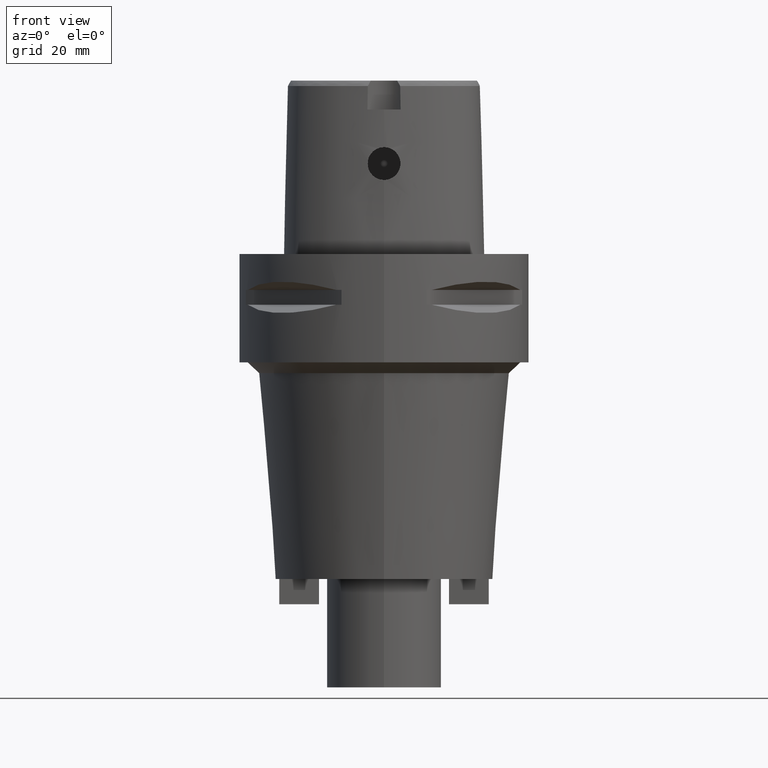
[diagram: clean part render]
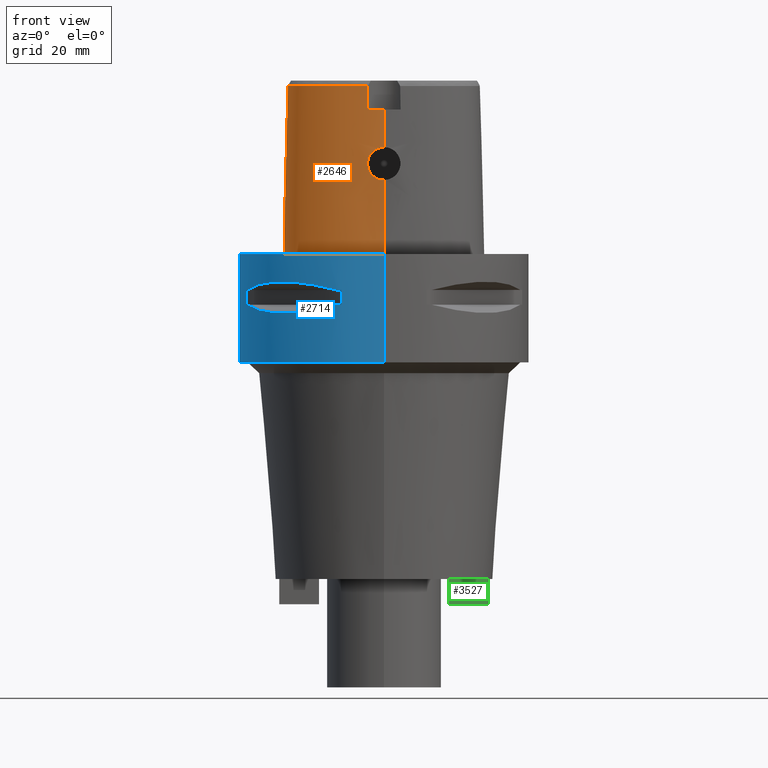
[diagram: same view with three faces highlighted in distinct colors, each labeled with its STEP entity id]
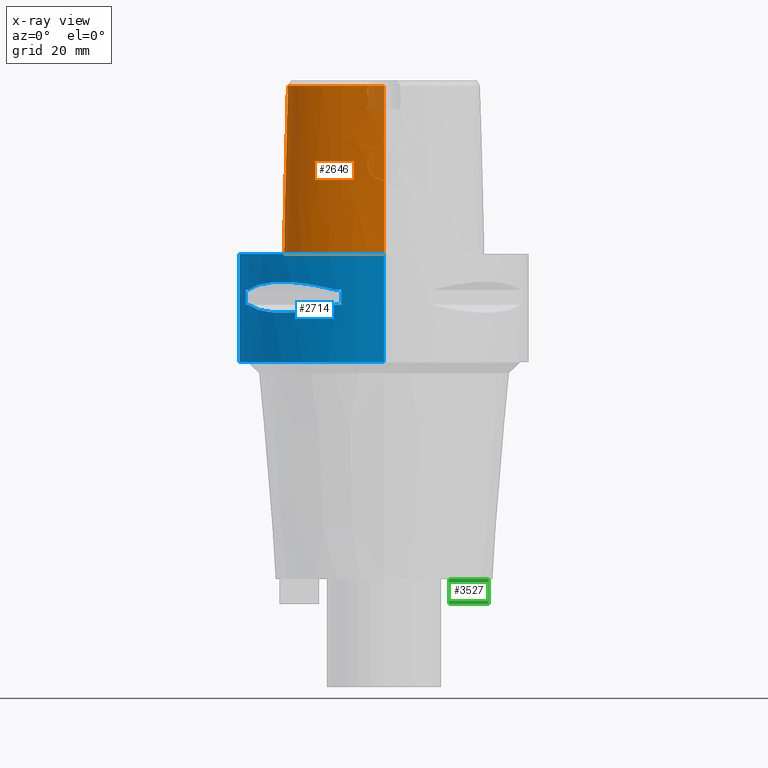
[diagram: x-ray of the same camera — body ghosted, the three highlighted faces saturated]
A machine part, front view with three faces highlighted in distinct colors.
The next image is the same camera in x-ray (body ghosted, the three faces saturated) — at least one of them is partly hidden behind the body in this view.
Their STEP definitions:

[orange] entity #2646 — the highlighted face is a freeform B-spline surface patch.
#194=CARTESIAN_POINT('',(-4.472216406693E0,-2.420008985674E1,4.652070903171E1));
#195=CARTESIAN_POINT('',(-5.566752972738E0,-2.409531443374E1,4.652067706231E1));
#196=CARTESIAN_POINT('',(-7.626572249183E0,-2.381749350375E1,4.652073690566E1));
#197=CARTESIAN_POINT('',(-1.025644246620E1,-2.327694465430E1,4.652070634773E1));
#198=CARTESIAN_POINT('',(-1.255553236811E1,-2.264619333084E1,4.652071981348E1));
#199=CARTESIAN_POINT('',(-1.462171284103E1,-2.193010112605E1,4.652071747614E1));
#200=CARTESIAN_POINT('',(-1.650534376786E1,-2.112747527393E1,4.652071760888E1));
#201=CARTESIAN_POINT('',(-1.822810716284E1,-2.023878228962E1,4.652071810457E1));
#202=CARTESIAN_POINT('',(-1.983924945154E1,-1.923379487276E1,4.652072019855E1));
#203=CARTESIAN_POINT('',(-2.127302490726E1,-1.814363673617E1,4.652072053242E1));
#204=CARTESIAN_POINT('',(-2.246702482285E1,-1.703859189459E1,4.652071702880E1));
#205=CARTESIAN_POINT('',(-2.346683998933E1,-1.591114086891E1,4.652072006295E1));
#206=CARTESIAN_POINT('',(-2.428548769196E1,-1.477483657723E1,4.652070937561E1));
#207=CARTESIAN_POINT('',(-2.496089362446E1,-1.360011182708E1,4.652075943285E1));
#208=CARTESIAN_POINT('',(-2.553329135094E1,-1.231470504587E1,4.652071304218E1));
#209=CARTESIAN_POINT('',(-2.600443169110E1,-1.088320478026E1,4.652072175754E1));
#210=CARTESIAN_POINT('',(-2.636074145965E1,-9.287143691058E0,4.652071660494E1));
#211=CARTESIAN_POINT('',(-2.658180853097E1,-7.493754876550E0,4.652071801486E1));
#212=CARTESIAN_POINT('',(-2.664066191009E1,-5.605226559399E0,4.652072307758E1));
#213=CARTESIAN_POINT('',(-2.654382409310E1,-3.662653568379E0,4.652071244664E1));
#214=CARTESIAN_POINT('',(-2.629233289579E1,-1.632023755251E0,4.652071999429E1));
#215=CARTESIAN_POINT('',(-2.587461557926E1,5.172959106258E-1,4.652071530100E1));
#216=CARTESIAN_POINT('',(-2.526291030684E1,2.836950677517E0,4.652071703929E1));
#217=CARTESIAN_POINT('',(-2.440383953409E1,5.400638922273E0,4.652072027849E1));
#218=CARTESIAN_POINT('',(-2.320657016047E1,8.299218662363E0,4.652071788528E1));
#219=CARTESIAN_POINT('',(-2.161101455853E1,1.146886156552E1,4.652071561293E1));
#220=CARTESIAN_POINT('',(-1.974707131589E1,1.455270720807E1,4.652071765350E1));
#221=CARTESIAN_POINT('',(-1.779193435817E1,1.729312709914E1,4.652070849307E1));
#222=CARTESIAN_POINT('',(-1.593305827350E1,1.953843954641E1,4.652071998752E1));
#223=CARTESIAN_POINT('',(-1.417824904304E1,2.138958595607E1,4.652071595762E1));
#224=CARTESIAN_POINT('',(-1.252767121199E1,2.291819357136E1,4.652072462541E1));
#225=CARTESIAN_POINT('',(-1.089273099447E1,2.424311681537E1,4.652071914428E1));
#226=CARTESIAN_POINT('',(-9.254383900595E0,2.538760109143E1,4.652072160544E1));
#227=CARTESIAN_POINT('',(-7.593722411250E0,2.636523820750E1,4.652071691341E1));
#228=CARTESIAN_POINT('',(-5.926210594807E0,2.716169702297E1,4.652072194303E1));
#229=CARTESIAN_POINT('',(-4.306690001783E0,2.775400821474E1,4.652071694446E1));
#230=CARTESIAN_POINT('',(-2.797370709651E0,2.814392785223E1,4.652072062625E1));
#231=CARTESIAN_POINT('',(-1.359391699242E0,2.836564791663E1,4.652067887082E1));
#232=CARTESIAN_POINT('',(-4.535821174496E-1,2.841206021535E1,4.652071719450E1));
#233=CARTESIAN_POINT('',(-1.300493308120E-11,2.841206021535E1,
4.652071719451E1));
#245=CARTESIAN_POINT('',(-4.472216406693E0,-2.420008985674E1,4.652070903171E1));
#246=CARTESIAN_POINT('',(-4.487210721186E0,-2.421685468864E1,4.579601479726E1));
#247=CARTESIAN_POINT('',(-4.516393871198E0,-2.424985511122E1,4.434671166025E1));
#248=CARTESIAN_POINT('',(-4.559960929945E0,-2.430022581201E1,4.217314625867E1));
#249=CARTESIAN_POINT('',(-4.588866880071E0,-2.433440429495E1,4.072435065553E1));
#250=CARTESIAN_POINT('',(-4.602926399294E0,-2.435121850033E1,4.E1));
#255=DIRECTION('',(1.388127457203E-9,-2.499239851702E-2,-9.996876412242E-1));
#256=VECTOR('',#255,1.045326522127E1);
#257=CARTESIAN_POINT('',(-1.451045074373E-8,-2.457504746727E1,
4.000000005214E1));
#258=LINE('',#257,#256);
#262=CARTESIAN_POINT('',(1.372734075401E-14,-2.483629963748E1,2.955E1));
#263=CARTESIAN_POINT('',(-3.966835984646E-1,-2.483629963748E1,2.955E1));
#264=CARTESIAN_POINT('',(-1.190418809773E0,-2.482887723659E1,2.944561742728E1));
#265=CARTESIAN_POINT('',(-2.300741017991E0,-2.479906243005E1,2.898605904871E1));
#266=CARTESIAN_POINT('',(-3.255789090205E0,-2.476057038817E1,2.825311794410E1));
#267=CARTESIAN_POINT('',(-3.987636326582E0,-2.472742176594E1,2.729796279280E1));
#268=CARTESIAN_POINT('',(-4.446358689829E0,-2.471345406062E1,2.618734946089E1));
#269=CARTESIAN_POINT('',(-4.602009607481E0,-2.472805014992E1,2.499856857259E1));
#270=CARTESIAN_POINT('',(-4.445601745922E0,-2.477322141726E1,2.381050642308E1));
#271=CARTESIAN_POINT('',(-3.987821795884E0,-2.484269847339E1,2.270284549258E1));
#272=CARTESIAN_POINT('',(-3.257169514981E0,-2.492348668177E1,2.174816226309E1));
#273=CARTESIAN_POINT('',(-2.300561363557E0,-2.499862191626E1,2.101354524447E1));
#274=CARTESIAN_POINT('',(-1.188130274278E0,-2.505127109848E1,2.055374615128E1));
#275=CARTESIAN_POINT('',(-3.956083647809E-1,-2.506378435149E1,2.045E1));
#276=CARTESIAN_POINT('',(-1.778692822600E-12,-2.506378435149E1,2.045E1));
#281=DIRECTION('',(-6.125829354769E-13,-2.499051295404E-2,-9.996876883619E-1));
#282=VECTOR('',#281,2.045638876829E1);
#283=CARTESIAN_POINT('',(-1.778692822600E-12,-2.506378435149E1,2.045E1));
#284=LINE('',#283,#282);
#347=CARTESIAN_POINT('',(3.442285893376E-11,2.957499999999E1,
6.550315845288E-14));
#348=CARTESIAN_POINT('',(-4.795829405775E-1,2.9575E1,6.550315845288E-14));
#349=CARTESIAN_POINT('',(-1.458739884524E0,2.952583980087E1,
-3.040012163461E-14));
#350=CARTESIAN_POINT('',(-2.980935165800E0,2.929443231586E1,0.E0));
#351=CARTESIAN_POINT('',(-4.576194842422E0,2.888870189817E1,0.E0));
#352=CARTESIAN_POINT('',(-6.256336683209E0,2.828474736572E1,0.E0));
#353=CARTESIAN_POINT('',(-8.024149930805E0,2.745709228825E1,0.E0));
#354=CARTESIAN_POINT('',(-9.893703847896E0,2.636801827381E1,0.E0));
#355=CARTESIAN_POINT('',(-1.185954799474E1,2.498217750787E1,0.E0));
#356=CARTESIAN_POINT('',(-1.391205090142E1,2.326233337167E1,0.E0));
#357=CARTESIAN_POINT('',(-1.602418300624E1,2.118058141144E1,0.E0));
#358=CARTESIAN_POINT('',(-1.814627868223E1,1.873364856362E1,0.E0));
#359=CARTESIAN_POINT('',(-2.021436929345E1,1.594435090165E1,0.E0));
#360=CARTESIAN_POINT('',(-2.213788688553E1,1.289526682457E1,0.E0));
#361=CARTESIAN_POINT('',(-2.383235637860E1,9.706467064512E0,0.E0));
#362=CARTESIAN_POINT('',(-2.523024638456E1,6.518747102213E0,0.E0));
#363=CARTESIAN_POINT('',(-2.630573186609E1,3.448893003092E0,0.E0));
#364=CARTESIAN_POINT('',(-2.706848336820E1,5.683896560291E-1,0.E0));
#365=CARTESIAN_POINT('',(-2.754601211986E1,-2.079994430505E0,0.E0));
#366=CARTESIAN_POINT('',(-2.777605796544E1,-4.490319200742E0,0.E0));
#367=CARTESIAN_POINT('',(-2.779506921197E1,-6.666908452758E0,0.E0));
#368=CARTESIAN_POINT('',(-2.763625149998E1,-8.625734135325E0,0.E0));
#369=CARTESIAN_POINT('',(-2.732807334130E1,-1.038567518895E1,0.E0));
#370=CARTESIAN_POINT('',(-2.688845096572E1,-1.198115139109E1,0.E0));
#371=CARTESIAN_POINT('',(-2.633040786065E1,-1.343236629979E1,0.E0));
#372=CARTESIAN_POINT('',(-2.564523728608E1,-1.478493191823E1,0.E0));
#373=CARTESIAN_POINT('',(-2.482362638296E1,-1.605093991698E1,0.E0));
#374=CARTESIAN_POINT('',(-2.385288274024E1,-1.725868106624E1,0.E0));
#375=CARTESIAN_POINT('',(-2.270041226892E1,-1.843475671898E1,0.E0));
#376=CARTESIAN_POINT('',(-2.134123279049E1,-1.958037783287E1,0.E0));
#377=CARTESIAN_POINT('',(-1.972945508251E1,-2.070126167717E1,0.E0));
#378=CARTESIAN_POINT('',(-1.784549905494E1,-2.177439114955E1,0.E0));
#379=CARTESIAN_POINT('',(-1.565129741006E1,-2.278419967138E1,0.E0));
#380=CARTESIAN_POINT('',(-1.312504927769E1,-2.370003342140E1,0.E0));
#381=CARTESIAN_POINT('',(-1.025425567812E1,-2.448570831876E1,0.E0));
#382=CARTESIAN_POINT('',(-7.057919699958E0,-2.509623421533E1,0.E0));
#383=CARTESIAN_POINT('',(-3.613625933195E0,-2.548420440080E1,
-3.340578337814E-14));
#384=CARTESIAN_POINT('',(-1.224099183911E0,-2.5575E1,7.197945942986E-14));
#385=CARTESIAN_POINT('',(-1.430992750353E-11,-2.5575E1,7.197945942986E-14));
#1077=DIRECTION('',(1.019179897105E-12,2.499051293976E-2,-9.996876883622E-1));
#1078=VECTOR('',#1077,4.653525069487E1);
#1079=CARTESIAN_POINT('',(-1.300493308120E-11,2.841206021535E1,
4.652071719451E1));
#1080=LINE('',#1079,#1078);
#1094=CARTESIAN_POINT('',(-1.451045074373E-8,-2.457504746727E1,
4.000000005214E1));
#1095=CARTESIAN_POINT('',(-5.124223382063E-1,-2.457504746706E1,
4.000000005214E1));
#1096=CARTESIAN_POINT('',(-1.536621703185E0,-2.455890147822E1,
3.999999997567E1));
#1097=CARTESIAN_POINT('',(-3.071957833090E0,-2.448406989332E1,
4.000000000695E1));
#1098=CARTESIAN_POINT('',(-4.092927957720E0,-2.440134255033E1,4.E1));
#1099=CARTESIAN_POINT('',(-4.602926399294E0,-2.435121850033E1,4.E1));
#1715=CARTESIAN_POINT('',(-4.602965878456E0,-2.435127227233E1,4.E1));
#1716=VERTEX_POINT('',#1715);
#1717=VERTEX_POINT('',#245);
#1718=CARTESIAN_POINT('',(-1.300493308120E-11,2.841206021535E1,
4.652071719451E1));
#1719=VERTEX_POINT('',#1718);
#1720=VERTEX_POINT('',#347);
#1721=VERTEX_POINT('',#385);
#1722=VERTEX_POINT('',#1094);
#1723=CARTESIAN_POINT('',(1.372734075387E-14,-2.483629963748E1,2.955E1));
#1724=VERTEX_POINT('',#1723);
#1725=VERTEX_POINT('',#276);
#2521=CARTESIAN_POINT('',(9.115101692121E-1,2.956851176972E1,
-9.304148673887E-1));
#2522=CARTESIAN_POINT('',(8.850788339564E-1,2.916624645565E1,1.519677616735E1));
#2523=CARTESIAN_POINT('',(8.586474987007E-1,2.876398114157E1,3.132396720209E1));
#2524=CARTESIAN_POINT('',(8.322161634451E-1,2.836171582749E1,4.745115823682E1));
#2525=CARTESIAN_POINT('',(6.077626427939E-1,2.958843422342E1,
-9.304148673887E-1));
#2526=CARTESIAN_POINT('',(5.902542417887E-1,2.918556684476E1,1.519677616735E1));
#2527=CARTESIAN_POINT('',(5.727458407835E-1,2.878269946610E1,3.132396720209E1));
#2528=CARTESIAN_POINT('',(5.552374397784E-1,2.837983208743E1,4.745115823682E1));
#2529=CARTESIAN_POINT('',(-7.475778419620E-1,2.963225229707E1,
-9.304148673887E-1));
#2530=CARTESIAN_POINT('',(-7.257524858635E-1,2.922811243655E1,
1.519677616735E1));
#2531=CARTESIAN_POINT('',(-7.039271297650E-1,2.882397257604E1,
3.132396720209E1));
#2532=CARTESIAN_POINT('',(-6.821017736666E-1,2.841983271552E1,
4.745115823682E1));
#2533=CARTESIAN_POINT('',(-3.154109048614E0,2.936302094335E1,
-9.304148673887E-1));
#2534=CARTESIAN_POINT('',(-3.067023364161E0,2.896669959202E1,1.519677616735E1));
#2535=CARTESIAN_POINT('',(-2.979937679708E0,2.857037824069E1,3.132396720209E1));
#2536=CARTESIAN_POINT('',(-2.892851995255E0,2.817405688936E1,4.745115823682E1));
#2537=CARTESIAN_POINT('',(-6.271543174310E0,2.837237221426E1,
-9.304148673887E-1));
#2538=CARTESIAN_POINT('',(-6.114741862669E0,2.799897518788E1,1.519677616735E1));
#2539=CARTESIAN_POINT('',(-5.957940551027E0,2.762557816151E1,3.132396720209E1));
#2540=CARTESIAN_POINT('',(-5.801139239386E0,2.725218113514E1,4.745115823682E1));
#2541=CARTESIAN_POINT('',(-9.316733122376E0,2.681182151475E1,
-9.304148673887E-1));
#2542=CARTESIAN_POINT('',(-9.105791382496E0,2.646675900902E1,1.519677616735E1));
#2543=CARTESIAN_POINT('',(-8.894849642615E0,2.612169650328E1,3.132396720209E1));
#2544=CARTESIAN_POINT('',(-8.683907902735E0,2.577663399754E1,4.745115823682E1));
#2545=CARTESIAN_POINT('',(-1.323332856938E1,2.406149250644E1,
-9.304148673887E-1));
#2546=CARTESIAN_POINT('',(-1.296695399471E1,2.375598697819E1,1.519677616735E1));
#2547=CARTESIAN_POINT('',(-1.270057942005E1,2.345048144993E1,3.132396720209E1));
#2548=CARTESIAN_POINT('',(-1.243420484538E1,2.314497592168E1,4.745115823682E1));
#2549=CARTESIAN_POINT('',(-1.777103259386E1,1.953703865070E1,
-9.304148673887E-1));
#2550=CARTESIAN_POINT('',(-1.745811250315E1,1.927961870512E1,1.519677616735E1));
#2551=CARTESIAN_POINT('',(-1.714519241245E1,1.902219875954E1,3.132396720209E1));
#2552=CARTESIAN_POINT('',(-1.683227232174E1,1.876477881395E1,4.745115823682E1));
#2553=CARTESIAN_POINT('',(-2.235908248617E1,1.290902243541E1,
-9.304148673887E-1));
#2554=CARTESIAN_POINT('',(-2.200846679234E1,1.270659188828E1,1.519677616735E1));
#2555=CARTESIAN_POINT('',(-2.165785109852E1,1.250416134115E1,3.132396720209E1));
#2556=CARTESIAN_POINT('',(-2.130723540469E1,1.230173079401E1,4.745115823682E1));
#2557=CARTESIAN_POINT('',(-2.523075707090E1,6.836210434257E0,
-9.304148673887E-1));
#2558=CARTESIAN_POINT('',(-2.485610450631E1,6.683875407135E0,1.519677616735E1));
#2559=CARTESIAN_POINT('',(-2.448145194173E1,6.531540380013E0,3.132396720209E1));
#2560=CARTESIAN_POINT('',(-2.410679937715E1,6.379205352890E0,4.745115823682E1));
#2561=CARTESIAN_POINT('',(-2.679474626719E1,1.906447389842E0,
-9.304148673887E-1));
#2562=CARTESIAN_POINT('',(-2.640443210954E1,1.802817632573E0,1.519677616735E1));
#2563=CARTESIAN_POINT('',(-2.601411795189E1,1.699187875304E0,3.132396720209E1));
#2564=CARTESIAN_POINT('',(-2.562380379425E1,1.595558118035E0,4.745115823682E1));
#2565=CARTESIAN_POINT('',(-2.756041893208E1,-1.762105662285E0,
-9.304148673887E-1));
#2566=CARTESIAN_POINT('',(-2.716099283177E1,-1.823107516013E0,
1.519677616735E1));
#2567=CARTESIAN_POINT('',(-2.676156673147E1,-1.884109369742E0,
3.132396720209E1));
#2568=CARTESIAN_POINT('',(-2.636214063116E1,-1.945111223471E0,
4.745115823682E1));
#2569=CARTESIAN_POINT('',(-2.787808444079E1,-5.337383713823E0,
-9.304148673887E-1));
#2570=CARTESIAN_POINT('',(-2.747379235614E1,-5.347524340896E0,
1.519677616735E1));
#2571=CARTESIAN_POINT('',(-2.706950027149E1,-5.357664967969E0,
3.132396720209E1));
#2572=CARTESIAN_POINT('',(-2.666520818683E1,-5.367805595041E0,
4.745115823682E1));
#2573=CARTESIAN_POINT('',(-2.770696776875E1,-8.754869102066E0,
-9.304148673887E-1));
#2574=CARTESIAN_POINT('',(-2.730517710980E1,-8.703986957916E0,
1.519677616735E1));
#2575=CARTESIAN_POINT('',(-2.690338645085E1,-8.653104813766E0,
3.132396720209E1));
#2576=CARTESIAN_POINT('',(-2.650159579190E1,-8.602222669616E0,
4.745115823682E1));
#2577=CARTESIAN_POINT('',(-2.712297208924E1,-1.141745865809E1,
-9.304148673887E-1));
#2578=CARTESIAN_POINT('',(-2.673375355330E1,-1.130662577211E1,
1.519677616735E1));
#2579=CARTESIAN_POINT('',(-2.634453501737E1,-1.119579288612E1,
3.132396720209E1));
#2580=CARTESIAN_POINT('',(-2.595531648144E1,-1.108496000014E1,
4.745115823682E1));
#2581=CARTESIAN_POINT('',(-2.637046815436E1,-1.340391020212E1,
-9.304148673887E-1));
#2582=CARTESIAN_POINT('',(-2.600056126350E1,-1.324168024026E1,
1.519677616735E1));
#2583=CARTESIAN_POINT('',(-2.563065437264E1,-1.307945027840E1,
3.132396720209E1));
#2584=CARTESIAN_POINT('',(-2.526074748178E1,-1.291722031653E1,
4.745115823682E1));
#2585=CARTESIAN_POINT('',(-2.565830881011E1,-1.481383149849E1,
-9.304148673887E-1));
#2586=CARTESIAN_POINT('',(-2.530843701053E1,-1.461183292058E1,
1.519677616735E1));
#2587=CARTESIAN_POINT('',(-2.495856521094E1,-1.440983434266E1,
3.132396720209E1));
#2588=CARTESIAN_POINT('',(-2.460869341135E1,-1.420783576475E1,
4.745115823682E1));
#2589=CARTESIAN_POINT('',(-2.479336082237E1,-1.613554023032E1,
-9.304148673887E-1));
#2590=CARTESIAN_POINT('',(-2.446791210684E1,-1.589630644660E1,
1.519677616735E1));
#2591=CARTESIAN_POINT('',(-2.414246339130E1,-1.565707266288E1,
3.132396720209E1));
#2592=CARTESIAN_POINT('',(-2.381701467576E1,-1.541783887916E1,
4.745115823682E1));
#2593=CARTESIAN_POINT('',(-2.344929528859E1,-1.778045352630E1,
-9.304148673887E-1));
#2594=CARTESIAN_POINT('',(-2.315870193614E1,-1.749879683076E1,
1.519677616735E1));
#2595=CARTESIAN_POINT('',(-2.286810858369E1,-1.721714013521E1,
3.132396720209E1));
#2596=CARTESIAN_POINT('',(-2.257751523125E1,-1.693548343966E1,
4.745115823682E1));
#2597=CARTESIAN_POINT('',(-2.143542293841E1,-1.961750339913E1,
-9.304148673887E-1));
#2598=CARTESIAN_POINT('',(-2.119046229566E1,-1.929498354337E1,
1.519677616735E1));
#2599=CARTESIAN_POINT('',(-2.094550165290E1,-1.897246368761E1,
3.132396720209E1));
#2600=CARTESIAN_POINT('',(-2.070054101014E1,-1.864994383185E1,
4.745115823682E1));
#2601=CARTESIAN_POINT('',(-1.856135208865E1,-2.147443747551E1,
-9.304148673887E-1));
#2602=CARTESIAN_POINT('',(-1.836798839316E1,-2.111923998337E1,
1.519677616735E1));
#2603=CARTESIAN_POINT('',(-1.817462469768E1,-2.076404249122E1,
3.132396720209E1));
#2604=CARTESIAN_POINT('',(-1.798126100219E1,-2.040884499908E1,
4.745115823682E1));
#2605=CARTESIAN_POINT('',(-1.530623779956E1,-2.298697011099E1,
-9.304148673887E-1));
#2606=CARTESIAN_POINT('',(-1.515935276351E1,-2.261055589551E1,
1.519677616735E1));
#2607=CARTESIAN_POINT('',(-1.501246772746E1,-2.223414168002E1,
3.132396720209E1));
#2608=CARTESIAN_POINT('',(-1.486558269141E1,-2.185772746453E1,
4.745115823682E1));
#2609=CARTESIAN_POINT('',(-1.174634101740E1,-2.415815462038E1,
-9.304148673887E-1));
#2610=CARTESIAN_POINT('',(-1.164093419836E1,-2.376831828379E1,
1.519677616735E1));
#2611=CARTESIAN_POINT('',(-1.153552737933E1,-2.337848194721E1,
3.132396720209E1));
#2612=CARTESIAN_POINT('',(-1.143012056029E1,-2.298864561062E1,
4.745115823682E1));
#2613=CARTESIAN_POINT('',(-6.695047937846E0,-2.526858195591E1,
-9.304148673887E-1));
#2614=CARTESIAN_POINT('',(-6.639625054824E0,-2.486795305343E1,
1.519677616735E1));
#2615=CARTESIAN_POINT('',(-6.584202171801E0,-2.446732415094E1,
3.132396720209E1));
#2616=CARTESIAN_POINT('',(-6.528779288779E0,-2.406669524846E1,
4.745115823682E1));
#2617=CARTESIAN_POINT('',(-2.393548608526E0,-2.562160469814E1,
-9.304148673887E-1));
#2618=CARTESIAN_POINT('',(-2.373852710569E0,-2.521827329204E1,
1.519677616735E1));
#2619=CARTESIAN_POINT('',(-2.354156812612E0,-2.481494188594E1,
3.132396720209E1));
#2620=CARTESIAN_POINT('',(-2.334460914655E0,-2.441161047984E1,
4.745115823682E1));
#2621=CARTESIAN_POINT('',(5.689259952361E-1,-2.559577896886E1,
-9.304148673887E-1));
#2622=CARTESIAN_POINT('',(5.642418765494E-1,-2.519264526710E1,
1.519677616735E1));
#2623=CARTESIAN_POINT('',(5.595577578628E-1,-2.478951156534E1,
3.132396720209E1));
#2624=CARTESIAN_POINT('',(5.548736391762E-1,-2.438637786357E1,
4.745115823682E1));
#2625=CARTESIAN_POINT('',(8.532670505684E-1,-2.559082388507E1,
-9.304148673887E-1));
#2626=CARTESIAN_POINT('',(8.462420160741E-1,-2.518772720046E1,
1.519677616735E1));
#2627=CARTESIAN_POINT('',(8.392169815797E-1,-2.478463051586E1,
3.132396720209E1));
#2628=CARTESIAN_POINT('',(8.321919470853E-1,-2.438153383126E1,
4.745115823682E1));
#2629=B_SPLINE_SURFACE_WITH_KNOTS('',3,3,((#2521,#2522,#2523,#2524),(#2525,
#2526,#2527,#2528),(#2529,#2530,#2531,#2532),(#2533,#2534,#2535,#2536),(#2537,
#2538,#2539,#2540),(#2541,#2542,#2543,#2544),(#2545,#2546,#2547,#2548),(#2549,
#2550,#2551,#2552),(#2553,#2554,#2555,#2556),(#2557,#2558,#2559,#2560),(#2561,
#2562,#2563,#2564),(#2565,#2566,#2567,#2568),(#2569,#2570,#2571,#2572),(#2573,
#2574,#2575,#2576),(#2577,#2578,#2579,#2580),(#2581,#2582,#2583,#2584),(#2585,
#2586,#2587,#2588),(#2589,#2590,#2591,#2592),(#2593,#2594,#2595,#2596),(#2597,
#2598,#2599,#2600),(#2601,#2602,#2603,#2604),(#2605,#2606,#2607,#2608),(#2609,
#2610,#2611,#2612),(#2613,#2614,#2615,#2616),(#2617,#2618,#2619,#2620),(#2621,
#2622,#2623,#2624),(#2625,#2626,#2627,#2628)),.UNSPECIFIED.,.F.,.F.,.F.,(4,1,1,
1,1,1,1,1,1,1,1,1,1,1,1,1,1,1,1,1,1,1,1,1,4),(4,4),(-1.204223939039E-2,0.E0,
4.166666666710E-2,8.333333333373E-2,1.250000000004E-1,1.666666666670E-1,
2.500000000003E-1,3.333333333335E-1,4.166666666669E-1,4.583333333334E-1,
5.000000000001E-1,5.416666666668E-1,5.833333333333E-1,6.25E-1,6.458333333333E-1,
6.666666666667E-1,6.875E-1,7.083333333332E-1,7.499999999999E-1,
7.916666666666E-1,8.333333333331E-1,8.749999999998E-1,9.166666666665E-1,1.E0,
1.008851807893E0),(-2.738234687605E-9,1.000000139650E0),.UNSPECIFIED.);
#2631=ORIENTED_EDGE('',*,*,#2630,.F.);
#2633=ORIENTED_EDGE('',*,*,#2632,.F.);
#2634=ORIENTED_EDGE('',*,*,#2514,.F.);
#2635=ORIENTED_EDGE('',*,*,#1943,.T.);
#2637=ORIENTED_EDGE('',*,*,#2636,.F.);
#2639=ORIENTED_EDGE('',*,*,#2638,.T.);
#2641=ORIENTED_EDGE('',*,*,#2640,.T.);
#2643=ORIENTED_EDGE('',*,*,#2642,.T.);
#2644=EDGE_LOOP('',(#2631,#2633,#2634,#2635,#2637,#2639,#2641,#2643));
#2645=FACE_OUTER_BOUND('',#2644,.F.);
#234=B_SPLINE_CURVE_WITH_KNOTS('',3,(#194,#195,#196,#197,#198,#199,#200,#201,
#202,#203,#204,#205,#206,#207,#208,#209,#210,#211,#212,#213,#214,#215,#216,#217,
#218,#219,#220,#221,#222,#223,#224,#225,#226,#227,#228,#229,#230,#231,#232,
#233),.UNSPECIFIED.,.F.,.F.,(4,1,1,1,1,1,1,1,1,1,1,1,1,1,1,1,1,1,1,1,1,1,1,1,1,
1,1,1,1,1,1,1,1,1,1,1,1,4),(0.E0,2.702702702703E-2,5.405405405405E-2,
8.108108108108E-2,1.081081081081E-1,1.351351351351E-1,1.621621621622E-1,
1.891891891892E-1,2.162162162162E-1,2.432432432432E-1,2.702702702703E-1,
2.972972972973E-1,3.243243243243E-1,3.513513513514E-1,3.783783783784E-1,
4.054054054054E-1,4.324324324324E-1,4.594594594595E-1,4.864864864865E-1,
5.135135135135E-1,5.405405405405E-1,5.675675675676E-1,5.945945945946E-1,
6.216216216216E-1,6.486486486486E-1,6.756756756757E-1,7.027027027027E-1,
7.297297297297E-1,7.567567567568E-1,7.837837837838E-1,8.108108108108E-1,
8.378378378378E-1,8.648648648649E-1,8.918918918919E-1,9.189189189189E-1,
9.459459459459E-1,9.729729729730E-1,1.E0),.UNSPECIFIED.);
#251=B_SPLINE_CURVE_WITH_KNOTS('',3,(#245,#246,#247,#248,#249,#250),
.UNSPECIFIED.,.F.,.F.,(4,1,1,4),(0.E0,3.333333333333E-1,6.666666666667E-1,1.E0),
.UNSPECIFIED.);
#277=B_SPLINE_CURVE_WITH_KNOTS('',3,(#262,#263,#264,#265,#266,#267,#268,#269,
#270,#271,#272,#273,#274,#275,#276),.UNSPECIFIED.,.F.,.F.,(4,1,1,1,1,1,1,1,1,1,
1,1,4),(0.E0,8.333333333333E-2,1.666666666667E-1,2.5E-1,3.333333333333E-1,
4.166666666667E-1,5.E-1,5.833333333333E-1,6.666666666667E-1,7.5E-1,
8.333333333333E-1,9.166666666667E-1,1.E0),.UNSPECIFIED.);
#386=B_SPLINE_CURVE_WITH_KNOTS('',3,(#347,#348,#349,#350,#351,#352,#353,#354,
#355,#356,#357,#358,#359,#360,#361,#362,#363,#364,#365,#366,#367,#368,#369,#370,
#371,#372,#373,#374,#375,#376,#377,#378,#379,#380,#381,#382,#383,#384,#385),
.UNSPECIFIED.,.F.,.F.,(4,1,1,1,1,1,1,1,1,1,1,1,1,1,1,1,1,1,1,1,1,1,1,1,1,1,1,1,
1,1,1,1,1,1,1,1,4),(0.E0,2.777777777778E-2,5.555555555556E-2,8.333333333333E-2,
1.111111111111E-1,1.388888888889E-1,1.666666666667E-1,1.944444444444E-1,
2.222222222222E-1,2.5E-1,2.777777777778E-1,3.055555555556E-1,3.333333333333E-1,
3.611111111111E-1,3.888888888889E-1,4.166666666667E-1,4.444444444444E-1,
4.722222222222E-1,5.E-1,5.277777777778E-1,5.555555555556E-1,5.833333333333E-1,
6.111111111111E-1,6.388888888889E-1,6.666666666667E-1,6.944444444444E-1,
7.222222222222E-1,7.5E-1,7.777777777778E-1,8.055555555556E-1,8.333333333333E-1,
8.611111111111E-1,8.888888888889E-1,9.166666666667E-1,9.444444444444E-1,
9.722222222222E-1,1.E0),.UNSPECIFIED.);
#1100=B_SPLINE_CURVE_WITH_KNOTS('',3,(#1094,#1095,#1096,#1097,#1098,#1099),
.UNSPECIFIED.,.F.,.F.,(4,1,1,4),(0.E0,3.333333333333E-1,6.666666666667E-1,1.E0),
.UNSPECIFIED.);
#1943=EDGE_CURVE('',#1717,#1716,#251,.T.);
#2514=EDGE_CURVE('',#1717,#1719,#234,.T.);
#2630=EDGE_CURVE('',#1720,#1721,#386,.T.);
#2632=EDGE_CURVE('',#1719,#1720,#1080,.T.);
#2636=EDGE_CURVE('',#1722,#1716,#1100,.T.);
#2638=EDGE_CURVE('',#1722,#1724,#258,.T.);
#2640=EDGE_CURVE('',#1724,#1725,#277,.T.);
#2642=EDGE_CURVE('',#1725,#1721,#284,.T.);
#2646=ADVANCED_FACE('',(#2645),#2629,.T.);

[blue] entity #2714 — the highlighted cylindrical surface (partial cylindrical patch) has radius 40 mm, axis along (0, 0, -1).
#288=CARTESIAN_POINT('',(0.E0,1.298125607096E-14,0.E0));
#289=DIRECTION('',(0.E0,0.E0,-1.E0));
#290=DIRECTION('',(0.E0,-1.E0,0.E0));
#291=AXIS2_PLACEMENT_3D('',#288,#289,#290);
#390=DIRECTION('',(0.E0,0.E0,-1.E0));
#391=VECTOR('',#390,3.E1);
#392=CARTESIAN_POINT('',(0.E0,-4.E1,0.E0));
#393=LINE('',#392,#391);
#397=DIRECTION('',(0.E0,0.E0,-1.E0));
#398=VECTOR('',#397,4.1E0);
#399=CARTESIAN_POINT('',(-1.176033600281E1,3.823211342708E1,-9.95E0));
#400=LINE('',#399,#398);
#404=CARTESIAN_POINT('',(-1.323717311056E1,3.774622163927E1,-1.405E1));
#405=CARTESIAN_POINT('',(-1.626143876435E1,3.668564587161E1,-1.485167303901E1));
#406=CARTESIAN_POINT('',(-2.171906657626E1,3.397359084062E1,-1.597254843317E1));
#407=CARTESIAN_POINT('',(-2.850324251697E1,2.850324251697E1,-1.650891631180E1));
#408=CARTESIAN_POINT('',(-3.397359084062E1,2.171906657626E1,-1.597254843317E1));
#409=CARTESIAN_POINT('',(-3.668564587161E1,1.626143876435E1,-1.485167303901E1));
#410=CARTESIAN_POINT('',(-3.774622163927E1,1.323717311056E1,-1.405E1));
#415=DIRECTION('',(0.E0,0.E0,1.E0));
#416=VECTOR('',#415,4.1E0);
#417=CARTESIAN_POINT('',(-3.823211342708E1,1.176033600281E1,-1.405E1));
#418=LINE('',#417,#416);
#422=DIRECTION('',(0.E0,0.E0,-1.E0));
#423=VECTOR('',#422,4.1E0);
#424=CARTESIAN_POINT('',(-3.823211342708E1,-1.176033600281E1,-9.95E0));
#425=LINE('',#424,#423);
#429=CARTESIAN_POINT('',(-3.774622163927E1,-1.323717311056E1,-1.405E1));
#430=CARTESIAN_POINT('',(-3.668564587161E1,-1.626143876435E1,
-1.485167303901E1));
#431=CARTESIAN_POINT('',(-3.397359084062E1,-2.171906657626E1,
-1.597254843317E1));
#432=CARTESIAN_POINT('',(-2.850324251697E1,-2.850324251697E1,
-1.650891631180E1));
#433=CARTESIAN_POINT('',(-2.171906657626E1,-3.397359084062E1,
-1.597254843317E1));
#434=CARTESIAN_POINT('',(-1.626143876435E1,-3.668564587161E1,
-1.485167303901E1));
#435=CARTESIAN_POINT('',(-1.323717311056E1,-3.774622163927E1,-1.405E1));
#440=DIRECTION('',(0.E0,0.E0,1.E0));
#441=VECTOR('',#440,4.1E0);
#442=CARTESIAN_POINT('',(-1.176033600281E1,-3.823211342708E1,-1.405E1));
#443=LINE('',#442,#441);
#447=DIRECTION('',(0.E0,0.E0,-1.E0));
#448=VECTOR('',#447,3.E1);
#449=CARTESIAN_POINT('',(0.E0,4.E1,0.E0));
#450=LINE('',#449,#448);
#512=CARTESIAN_POINT('',(0.E0,1.298125607096E-14,-3.E1));
#513=DIRECTION('',(0.E0,0.E0,1.E0));
#514=DIRECTION('',(0.E0,1.E0,0.E0));
#515=AXIS2_PLACEMENT_3D('',#512,#513,#514);
#1562=CARTESIAN_POINT('',(-1.323717311056E1,3.774622163927E1,
-9.950000000002E0));
#1563=CARTESIAN_POINT('',(-1.626143876435E1,3.668564587161E1,
-9.148326960991E0));
#1564=CARTESIAN_POINT('',(-2.171906657626E1,3.397359084062E1,
-8.027451566833E0));
#1565=CARTESIAN_POINT('',(-2.850324251697E1,2.850324251697E1,
-7.491083688204E0));
#1566=CARTESIAN_POINT('',(-3.397359084062E1,2.171906657626E1,
-8.027451566833E0));
#1567=CARTESIAN_POINT('',(-3.668564587161E1,1.626143876435E1,
-9.148326960991E0));
#1568=CARTESIAN_POINT('',(-3.774622163927E1,1.323717311056E1,
-9.950000000002E0));
#1580=CARTESIAN_POINT('',(0.E0,1.298125607096E-14,-9.95E0));
#1581=DIRECTION('',(0.E0,0.E0,1.E0));
#1582=DIRECTION('',(-9.436555409818E-1,3.309293277639E-1,0.E0));
#1583=AXIS2_PLACEMENT_3D('',#1580,#1581,#1582);
#1588=CARTESIAN_POINT('',(0.E0,1.298125607096E-14,-9.95E0));
#1589=DIRECTION('',(0.E0,0.E0,1.E0));
#1590=DIRECTION('',(-2.940084000703E-1,9.558028356770E-1,0.E0));
#1591=AXIS2_PLACEMENT_3D('',#1588,#1589,#1590);
#1610=CARTESIAN_POINT('',(0.E0,1.298125607096E-14,-1.405E1));
#1611=DIRECTION('',(0.E0,0.E0,-1.E0));
#1612=DIRECTION('',(-9.558028356770E-1,2.940084000703E-1,0.E0));
#1613=AXIS2_PLACEMENT_3D('',#1610,#1611,#1612);
#1618=CARTESIAN_POINT('',(0.E0,1.298125607096E-14,-1.405E1));
#1619=DIRECTION('',(0.E0,0.E0,-1.E0));
#1620=DIRECTION('',(-3.309293277639E-1,9.436555409818E-1,0.E0));
#1621=AXIS2_PLACEMENT_3D('',#1618,#1619,#1620);
#1633=CARTESIAN_POINT('',(-3.774622163927E1,-1.323717311056E1,
-9.950000000002E0));
#1634=CARTESIAN_POINT('',(-3.668564587161E1,-1.626143876435E1,
-9.148326960991E0));
#1635=CARTESIAN_POINT('',(-3.397359084062E1,-2.171906657626E1,
-8.027451566833E0));
#1636=CARTESIAN_POINT('',(-2.850324251697E1,-2.850324251697E1,
-7.491083688204E0));
#1637=CARTESIAN_POINT('',(-2.171906657626E1,-3.397359084062E1,
-8.027451566833E0));
#1638=CARTESIAN_POINT('',(-1.626143876435E1,-3.668564587161E1,
-9.148326960991E0));
#1639=CARTESIAN_POINT('',(-1.323717311056E1,-3.774622163927E1,
-9.950000000002E0));
#1651=CARTESIAN_POINT('',(0.E0,1.298125607096E-14,-9.95E0));
#1652=DIRECTION('',(0.E0,0.E0,1.E0));
#1653=DIRECTION('',(-3.309293277639E-1,-9.436555409818E-1,0.E0));
#1654=AXIS2_PLACEMENT_3D('',#1651,#1652,#1653);
#1659=CARTESIAN_POINT('',(0.E0,1.298125607096E-14,-9.95E0));
#1660=DIRECTION('',(0.E0,0.E0,1.E0));
#1661=DIRECTION('',(-9.558028356770E-1,-2.940084000703E-1,0.E0));
#1662=AXIS2_PLACEMENT_3D('',#1659,#1660,#1661);
#1681=CARTESIAN_POINT('',(0.E0,1.298125607096E-14,-1.405E1));
#1682=DIRECTION('',(0.E0,0.E0,-1.E0));
#1683=DIRECTION('',(-2.940084000703E-1,-9.558028356770E-1,0.E0));
#1684=AXIS2_PLACEMENT_3D('',#1681,#1682,#1683);
#1689=CARTESIAN_POINT('',(0.E0,1.298125607096E-14,-1.405E1));
#1690=DIRECTION('',(0.E0,0.E0,-1.E0));
#1691=DIRECTION('',(-9.436555409818E-1,-3.309293277639E-1,0.E0));
#1692=AXIS2_PLACEMENT_3D('',#1689,#1690,#1691);
#1726=CARTESIAN_POINT('',(0.E0,-4.E1,0.E0));
#1727=CARTESIAN_POINT('',(0.E0,4.E1,0.E0));
#1728=VERTEX_POINT('',#1726);
#1729=VERTEX_POINT('',#1727);
#1730=CARTESIAN_POINT('',(0.E0,4.E1,-3.E1));
#1731=VERTEX_POINT('',#1730);
#1732=CARTESIAN_POINT('',(0.E0,-4.E1,-3.E1));
#1733=VERTEX_POINT('',#1732);
#1734=VERTEX_POINT('',#1562);
#1735=VERTEX_POINT('',#1568);
#1736=CARTESIAN_POINT('',(-1.176033600281E1,3.823211342708E1,-9.95E0));
#1737=VERTEX_POINT('',#1736);
#1738=CARTESIAN_POINT('',(-1.176033600281E1,3.823211342708E1,-1.405E1));
#1739=VERTEX_POINT('',#1738);
#1740=CARTESIAN_POINT('',(-1.323717311056E1,3.774622163927E1,-1.405E1));
#1741=VERTEX_POINT('',#1740);
#1742=VERTEX_POINT('',#410);
#1743=CARTESIAN_POINT('',(-3.823211342708E1,1.176033600281E1,-1.405E1));
#1744=VERTEX_POINT('',#1743);
#1745=CARTESIAN_POINT('',(-3.823211342708E1,1.176033600281E1,-9.95E0));
#1746=VERTEX_POINT('',#1745);
#1747=VERTEX_POINT('',#1633);
#1748=VERTEX_POINT('',#1639);
#1749=CARTESIAN_POINT('',(-3.823211342708E1,-1.176033600281E1,-9.95E0));
#1750=VERTEX_POINT('',#1749);
#1751=CARTESIAN_POINT('',(-3.823211342708E1,-1.176033600281E1,-1.405E1));
#1752=VERTEX_POINT('',#1751);
#1753=CARTESIAN_POINT('',(-3.774622163927E1,-1.323717311056E1,-1.405E1));
#1754=VERTEX_POINT('',#1753);
#1755=VERTEX_POINT('',#435);
#1756=CARTESIAN_POINT('',(-1.176033600281E1,-3.823211342708E1,-1.405E1));
#1757=VERTEX_POINT('',#1756);
#1758=CARTESIAN_POINT('',(-1.176033600281E1,-3.823211342708E1,-9.95E0));
#1759=VERTEX_POINT('',#1758);
#2664=CARTESIAN_POINT('',(0.E0,1.298125607096E-14,6.E0));
#2665=DIRECTION('',(0.E0,0.E0,-1.E0));
#2666=DIRECTION('',(0.E0,-1.E0,0.E0));
#2667=AXIS2_PLACEMENT_3D('',#2664,#2665,#2666);
#2668=CYLINDRICAL_SURFACE('',#2667,4.E1);
#2670=ORIENTED_EDGE('',*,*,#2669,.F.);
#2671=ORIENTED_EDGE('',*,*,#2652,.F.);
#2673=ORIENTED_EDGE('',*,*,#2672,.T.);
#2675=ORIENTED_EDGE('',*,*,#2674,.F.);
#2676=EDGE_LOOP('',(#2670,#2671,#2673,#2675));
#2677=FACE_OUTER_BOUND('',#2676,.F.);
#2679=ORIENTED_EDGE('',*,*,#2678,.F.);
#2681=ORIENTED_EDGE('',*,*,#2680,.F.);
#2683=ORIENTED_EDGE('',*,*,#2682,.T.);
#2685=ORIENTED_EDGE('',*,*,#2684,.F.);
#2687=ORIENTED_EDGE('',*,*,#2686,.T.);
#2689=ORIENTED_EDGE('',*,*,#2688,.F.);
#2691=ORIENTED_EDGE('',*,*,#2690,.T.);
#2693=ORIENTED_EDGE('',*,*,#2692,.F.);
#2694=EDGE_LOOP('',(#2679,#2681,#2683,#2685,#2687,#2689,#2691,#2693));
#2695=FACE_BOUND('',#2694,.F.);
#2697=ORIENTED_EDGE('',*,*,#2696,.F.);
#2699=ORIENTED_EDGE('',*,*,#2698,.F.);
#2701=ORIENTED_EDGE('',*,*,#2700,.T.);
#2703=ORIENTED_EDGE('',*,*,#2702,.F.);
#2705=ORIENTED_EDGE('',*,*,#2704,.T.);
#2707=ORIENTED_EDGE('',*,*,#2706,.F.);
#2709=ORIENTED_EDGE('',*,*,#2708,.T.);
#2711=ORIENTED_EDGE('',*,*,#2710,.F.);
#2712=EDGE_LOOP('',(#2697,#2699,#2701,#2703,#2705,#2707,#2709,#2711));
#2713=FACE_BOUND('',#2712,.F.);
#292=CIRCLE('',#291,4.E1);
#411=B_SPLINE_CURVE_WITH_KNOTS('',3,(#404,#405,#406,#407,#408,#409,#410),
.UNSPECIFIED.,.F.,.F.,(4,1,1,1,4),(0.E0,2.5E-1,5.E-1,7.5E-1,1.E0),
.UNSPECIFIED.);
#436=B_SPLINE_CURVE_WITH_KNOTS('',3,(#429,#430,#431,#432,#433,#434,#435),
.UNSPECIFIED.,.F.,.F.,(4,1,1,1,4),(0.E0,2.5E-1,5.E-1,7.5E-1,1.E0),
.UNSPECIFIED.);
#516=CIRCLE('',#515,4.E1);
#1569=B_SPLINE_CURVE_WITH_KNOTS('',3,(#1562,#1563,#1564,#1565,#1566,#1567,
#1568),.UNSPECIFIED.,.F.,.F.,(4,1,1,1,4),(0.E0,2.5E-1,5.E-1,7.5E-1,1.E0),
.UNSPECIFIED.);
#1584=CIRCLE('',#1583,4.E1);
#1592=CIRCLE('',#1591,4.E1);
#1614=CIRCLE('',#1613,4.E1);
#1622=CIRCLE('',#1621,4.E1);
#1640=B_SPLINE_CURVE_WITH_KNOTS('',3,(#1633,#1634,#1635,#1636,#1637,#1638,
#1639),.UNSPECIFIED.,.F.,.F.,(4,1,1,1,4),(0.E0,2.5E-1,5.E-1,7.5E-1,1.E0),
.UNSPECIFIED.);
#1655=CIRCLE('',#1654,4.E1);
#1663=CIRCLE('',#1662,4.E1);
#1685=CIRCLE('',#1684,4.E1);
#1693=CIRCLE('',#1692,4.E1);
#2652=EDGE_CURVE('',#1728,#1729,#292,.T.);
#2669=EDGE_CURVE('',#1729,#1731,#450,.T.);
#2672=EDGE_CURVE('',#1728,#1733,#393,.T.);
#2674=EDGE_CURVE('',#1731,#1733,#516,.T.);
#2678=EDGE_CURVE('',#1734,#1735,#1569,.T.);
#2680=EDGE_CURVE('',#1737,#1734,#1592,.T.);
#2682=EDGE_CURVE('',#1737,#1739,#400,.T.);
#2684=EDGE_CURVE('',#1741,#1739,#1622,.T.);
#2686=EDGE_CURVE('',#1741,#1742,#411,.T.);
#2688=EDGE_CURVE('',#1744,#1742,#1614,.T.);
#2690=EDGE_CURVE('',#1744,#1746,#418,.T.);
#2692=EDGE_CURVE('',#1735,#1746,#1584,.T.);
#2696=EDGE_CURVE('',#1747,#1748,#1640,.T.);
#2698=EDGE_CURVE('',#1750,#1747,#1663,.T.);
#2700=EDGE_CURVE('',#1750,#1752,#425,.T.);
#2702=EDGE_CURVE('',#1754,#1752,#1693,.T.);
#2704=EDGE_CURVE('',#1754,#1755,#436,.T.);
#2706=EDGE_CURVE('',#1757,#1755,#1685,.T.);
#2708=EDGE_CURVE('',#1757,#1759,#443,.T.);
#2710=EDGE_CURVE('',#1748,#1759,#1655,.T.);
#2714=ADVANCED_FACE('',(#2677,#2695,#2713),#2668,.T.);

[green] entity #3527 — the highlighted planar face has unit normal (0, 1, 0).
#1280=DIRECTION('',(1.E0,0.E0,0.E0));
#1281=VECTOR('',#1280,1.1E1);
#1282=CARTESIAN_POINT('',(1.8E1,-6.35E0,-9.E1));
#1283=LINE('',#1282,#1281);
#1287=DIRECTION('',(0.E0,0.E0,-1.E0));
#1288=VECTOR('',#1287,7.E0);
#1289=CARTESIAN_POINT('',(1.8E1,-6.35E0,-9.E1));
#1290=LINE('',#1289,#1288);
#1301=DIRECTION('',(1.E0,0.E0,0.E0));
#1302=VECTOR('',#1301,1.1E1);
#1303=CARTESIAN_POINT('',(1.8E1,-6.35E0,-9.7E1));
#1304=LINE('',#1303,#1302);
#1322=DIRECTION('',(0.E0,0.E0,1.E0));
#1323=VECTOR('',#1322,7.E0);
#1324=CARTESIAN_POINT('',(2.9E1,-6.35E0,-9.7E1));
#1325=LINE('',#1324,#1323);
#1802=CARTESIAN_POINT('',(1.8E1,-6.35E0,-9.E1));
#1803=CARTESIAN_POINT('',(2.9E1,-6.35E0,-9.E1));
#1804=VERTEX_POINT('',#1802);
#1805=VERTEX_POINT('',#1803);
#1895=CARTESIAN_POINT('',(1.8E1,-6.35E0,-9.7E1));
#1896=VERTEX_POINT('',#1895);
#1897=CARTESIAN_POINT('',(2.9E1,-6.35E0,-9.7E1));
#1898=VERTEX_POINT('',#1897);
#3513=CARTESIAN_POINT('',(0.E0,-6.35E0,0.E0));
#3514=DIRECTION('',(0.E0,1.E0,0.E0));
#3515=DIRECTION('',(0.E0,0.E0,-1.E0));
#3516=AXIS2_PLACEMENT_3D('',#3513,#3514,#3515);
#3517=PLANE('',#3516);
#3519=ORIENTED_EDGE('',*,*,#3518,.F.);
#3520=ORIENTED_EDGE('',*,*,#2851,.T.);
#3522=ORIENTED_EDGE('',*,*,#3521,.F.);
#3524=ORIENTED_EDGE('',*,*,#3523,.F.);
#3525=EDGE_LOOP('',(#3519,#3520,#3522,#3524));
#3526=FACE_OUTER_BOUND('',#3525,.F.);
#2851=EDGE_CURVE('',#1804,#1805,#1283,.T.);
#3518=EDGE_CURVE('',#1804,#1896,#1290,.T.);
#3521=EDGE_CURVE('',#1898,#1805,#1325,.T.);
#3523=EDGE_CURVE('',#1896,#1898,#1304,.T.);
#3527=ADVANCED_FACE('',(#3526),#3517,.F.);